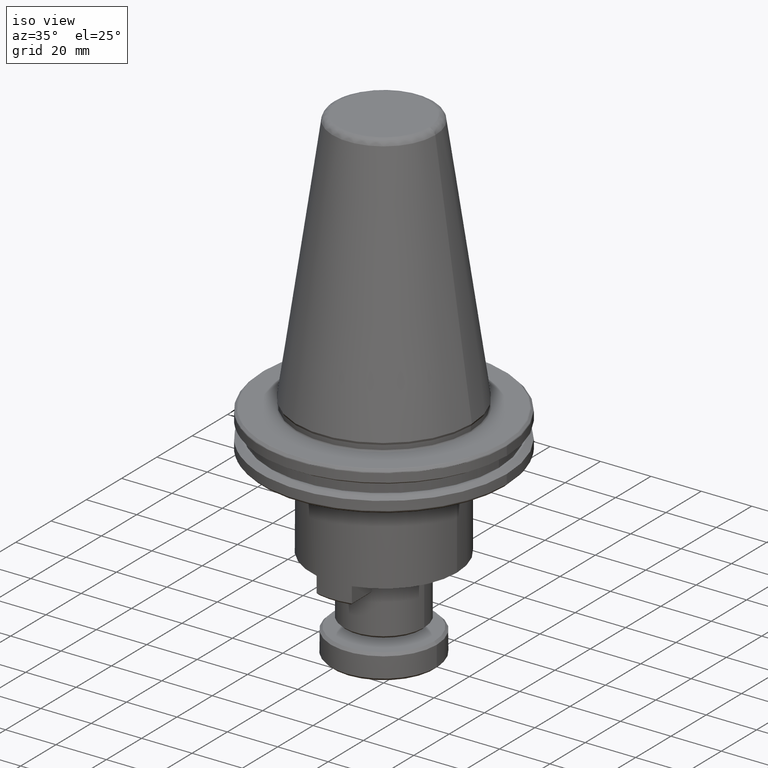
[diagram: clean part render]
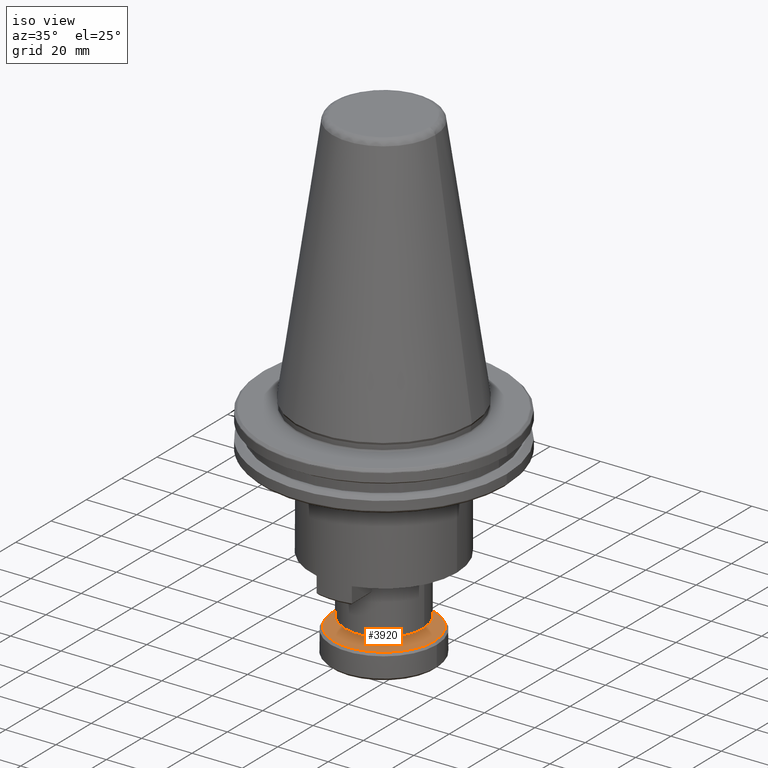
[diagram: same view with one face highlighted and labeled with its STEP entity id]
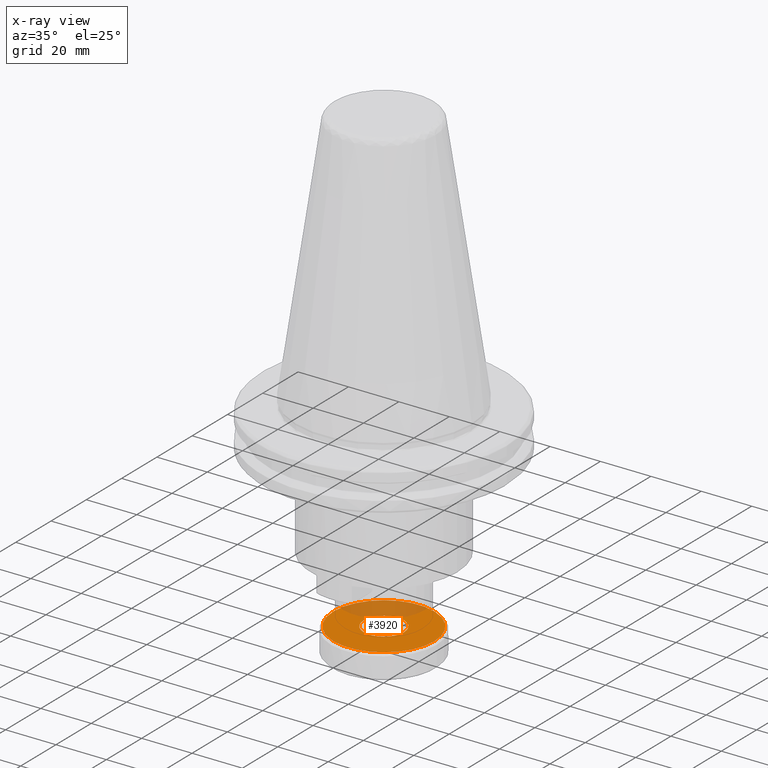
[diagram: x-ray of the same camera — body ghosted, the highlighted face saturated]
A machine part, iso view. The second image highlights one B-rep face of the part: STEP entity #3920.
The next image is the same camera in x-ray: the body ghosted, the highlighted face saturated — about 26% of this face is hidden behind the body in this view.
In plain terms, the highlighted planar face has unit normal (0, 0, -1).
Its self-contained STEP definition (entity closure, byte-faithful):
#243 = CARTESIAN_POINT ( 'NONE',  ( 91.78900745422478700, 111.8872747687010000, 15.99950277828043900 ) ) ;
#425 = AXIS2_PLACEMENT_3D ( 'NONE', #919, #3624, #1302 ) ;
#506 = CARTESIAN_POINT ( 'NONE',  ( 83.78900745422478700, 111.8872747687010000, 15.99950277828043900 ) ) ;
#508 = CIRCLE ( 'NONE', #3327, 20.00000000000000400 ) ;
#592 = CARTESIAN_POINT ( 'NONE',  ( 111.7890074542247900, 111.8872747687010000, 15.99950277828043900 ) ) ;
#629 = DIRECTION ( 'NONE',  ( -1.000000000000000000, 0.0000000000000000000, 0.0000000000000000000 ) ) ;
#878 = VERTEX_POINT ( 'NONE', #4115 ) ;
#919 = CARTESIAN_POINT ( 'NONE',  ( 91.78900745422478700, 111.8872747687010000, 15.99950277828043900 ) ) ;
#1094 = DIRECTION ( 'NONE',  ( -1.000000000000000000, 0.0000000000000000000, 0.0000000000000000000 ) ) ;
#1114 = DIRECTION ( 'NONE',  ( 0.0000000000000000000, 0.0000000000000000000, -1.000000000000000000 ) ) ;
#1129 = CARTESIAN_POINT ( 'NONE',  ( 91.78900745422478700, 111.8872747687010000, 15.99950277828043900 ) ) ;
#1302 = DIRECTION ( 'NONE',  ( 1.000000000000000000, 0.0000000000000000000, 0.0000000000000000000 ) ) ;
#1329 = AXIS2_PLACEMENT_3D ( 'NONE', #2055, #1602, #1587 ) ;
#1345 = VERTEX_POINT ( 'NONE', #592 ) ;
#1515 = EDGE_CURVE ( 'NONE', #1345, #3819, #508, .T. ) ;
#1587 = DIRECTION ( 'NONE',  ( 1.000000000000000000, 0.0000000000000000000, 0.0000000000000000000 ) ) ;
#1602 = DIRECTION ( 'NONE',  ( -0.0000000000000000000, -0.0000000000000000000, 1.000000000000000000 ) ) ;
#1629 = AXIS2_PLACEMENT_3D ( 'NONE', #2807, #2038, #4740 ) ;
#2038 = DIRECTION ( 'NONE',  ( 0.0000000000000000000, 0.0000000000000000000, -1.000000000000000000 ) ) ;
#2055 = CARTESIAN_POINT ( 'NONE',  ( 91.78900745422478700, 111.8872747687010000, 15.99950277828043900 ) ) ;
#2109 = EDGE_LOOP ( 'NONE', ( #4619, #4719 ) ) ;
#2216 = EDGE_CURVE ( 'NONE', #3686, #878, #4696, .T. ) ;
#2410 = CIRCLE ( 'NONE', #425, 8.000000000000007100 ) ;
#2807 = CARTESIAN_POINT ( 'NONE',  ( 111.7890074542247900, 111.8872747687010000, 15.99950277828043900 ) ) ;
#2958 = DIRECTION ( 'NONE',  ( 0.0000000000000000000, 0.0000000000000000000, -1.000000000000000000 ) ) ;
#3101 = ORIENTED_EDGE ( 'NONE', *, *, #1515, .F. ) ;
#3271 = FACE_OUTER_BOUND ( 'NONE', #4031, .T. ) ;
#3279 = FACE_BOUND ( 'NONE', #2109, .T. ) ;
#3327 = AXIS2_PLACEMENT_3D ( 'NONE', #1129, #1114, #1094 ) ;
#3344 = ORIENTED_EDGE ( 'NONE', *, *, #3541, .F. ) ;
#3541 = EDGE_CURVE ( 'NONE', #3819, #1345, #3629, .T. ) ;
#3624 = DIRECTION ( 'NONE',  ( -0.0000000000000000000, -0.0000000000000000000, 1.000000000000000000 ) ) ;
#3629 = CIRCLE ( 'NONE', #3662, 20.00000000000000400 ) ;
#3662 = AXIS2_PLACEMENT_3D ( 'NONE', #243, #2958, #629 ) ;
#3686 = VERTEX_POINT ( 'NONE', #506 ) ;
#3819 = VERTEX_POINT ( 'NONE', #3876 ) ;
#3876 = CARTESIAN_POINT ( 'NONE',  ( 71.78900745422478700, 111.8872747687010000, 15.99950277828043900 ) ) ;
#3920 = ADVANCED_FACE ( 'NONE', ( #3271, #3279 ), #3990, .F. ) ;
#3990 = PLANE ( 'NONE',  #1629 ) ;
#4031 = EDGE_LOOP ( 'NONE', ( #3344, #3101 ) ) ;
#4115 = CARTESIAN_POINT ( 'NONE',  ( 99.78900745422480200, 111.8872747687010000, 15.99950277828043900 ) ) ;
#4619 = ORIENTED_EDGE ( 'NONE', *, *, #4803, .F. ) ;
#4696 = CIRCLE ( 'NONE', #1329, 8.000000000000007100 ) ;
#4719 = ORIENTED_EDGE ( 'NONE', *, *, #2216, .F. ) ;
#4740 = DIRECTION ( 'NONE',  ( -1.000000000000000000, 0.0000000000000000000, -0.0000000000000000000 ) ) ;
#4803 = EDGE_CURVE ( 'NONE', #878, #3686, #2410, .T. ) ;